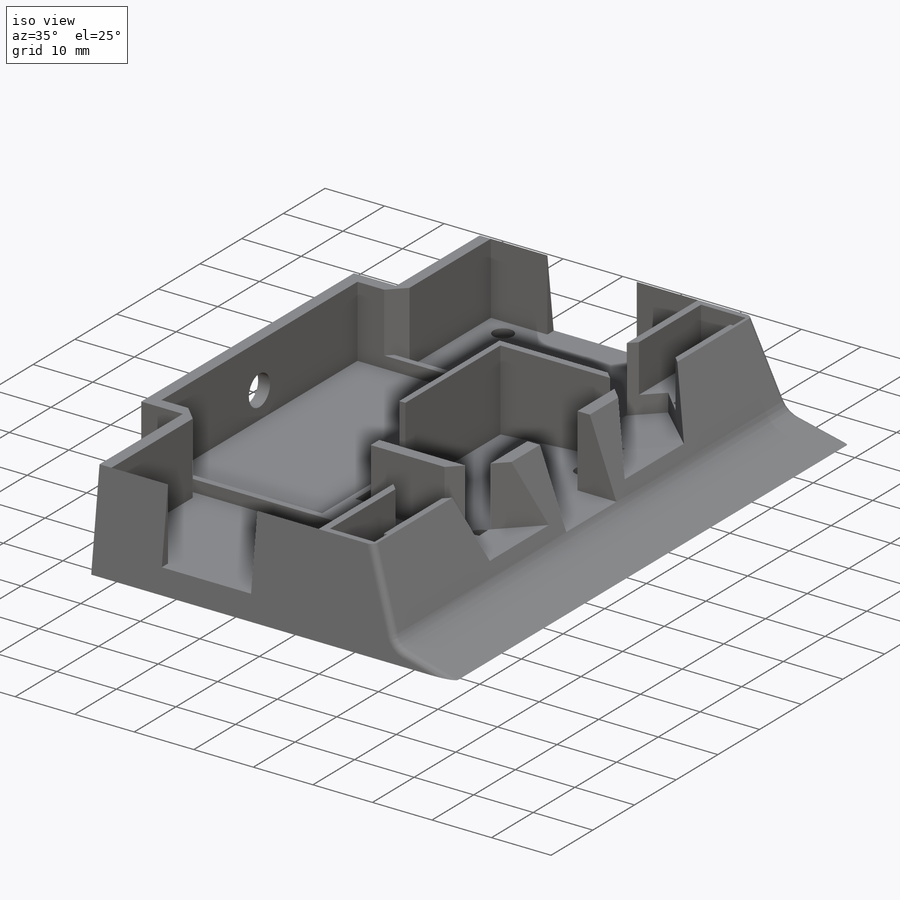
[diagram: iso view]
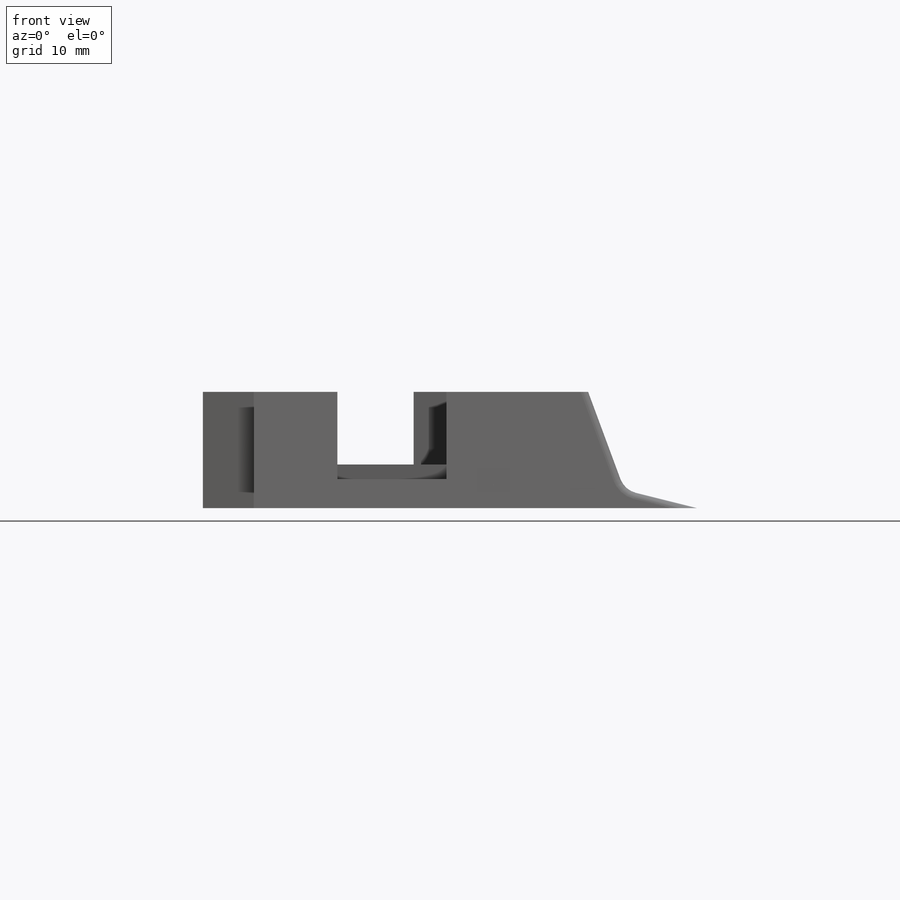
[diagram: front view]
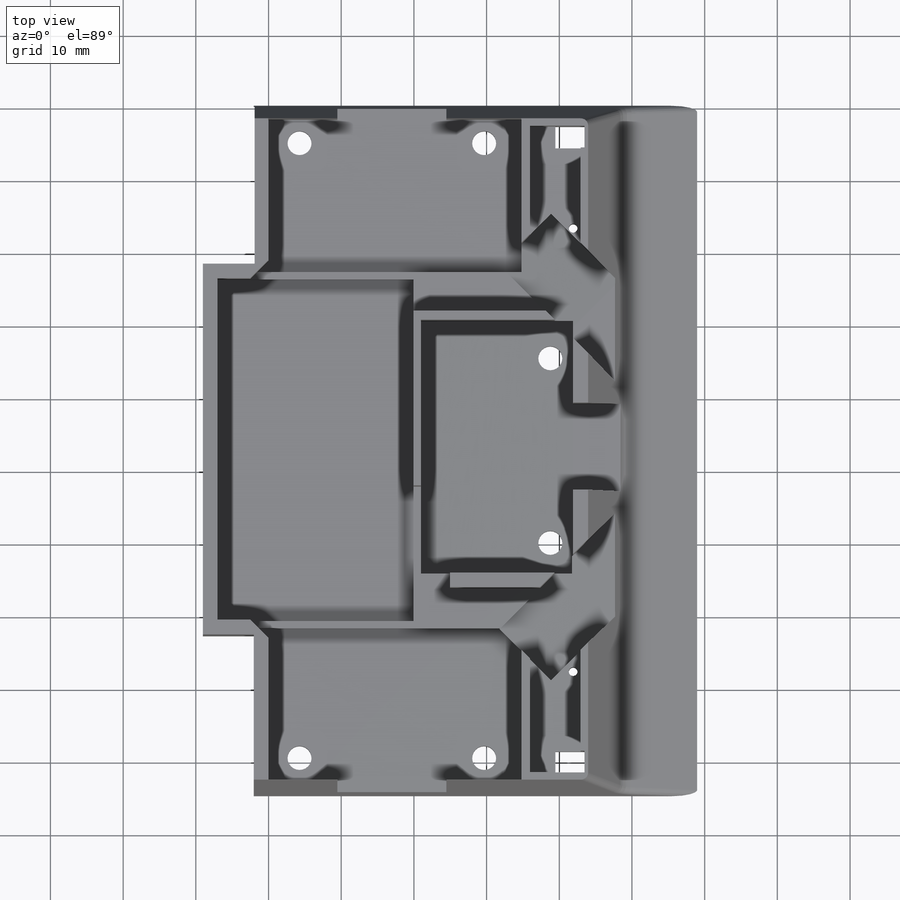
[diagram: top view]
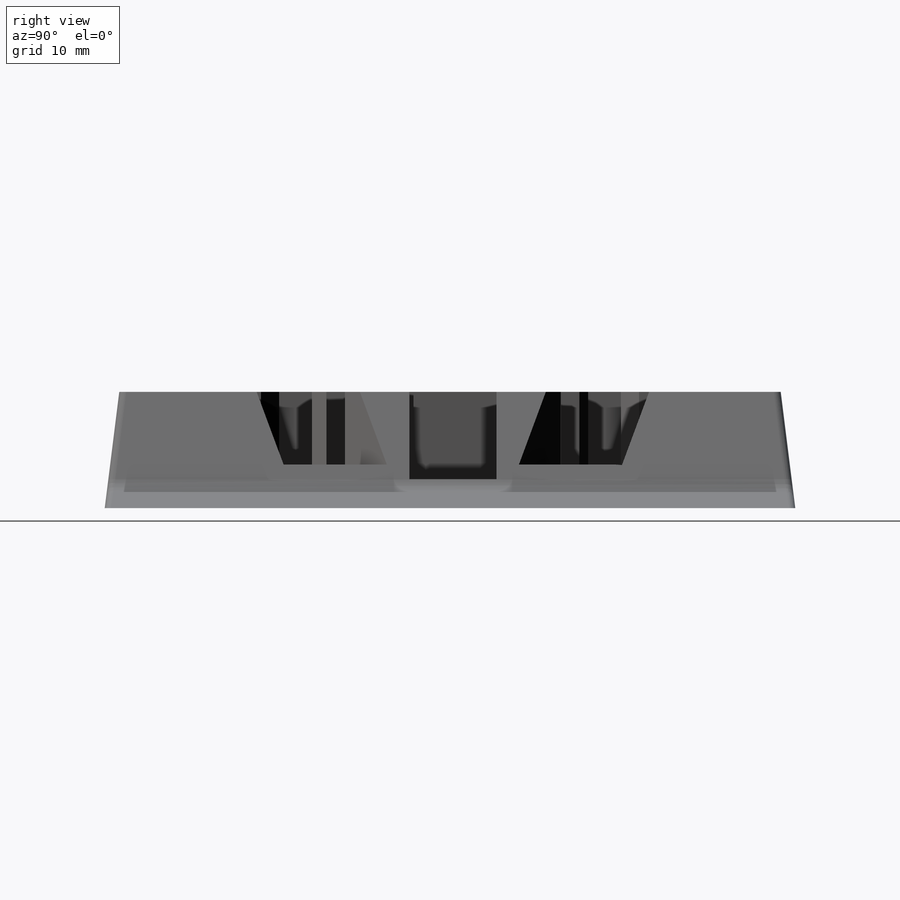
[diagram: right view]
SOLIDWORKS PART (.sldprt)
format: sldprt  version: not decoded by parser v0  size: 2,691,584 bytes
history: native  units: mm
features: sketch x126, cut_extrude x105, extrude x21, fillet x12, chamfer x3, material x1 (+12 scaffold rows collapsed)
feature tree (280):
  scaffold x12  (default folders/planes/origin — collapsed)
  material  "Material <not specified>"
  sketch  "Sketch1"  dims[D1=95.0mm D2=95.0mm]
  extrude  "Boss-Extrude1"  Depth=20mm
  sketch  "Sketch2"  dims[D1=34.0mm]
  cut_extrude  "Cut-Extrude1"  Depth=22mm
  sketch  "Sketch3"  dims[D1=34.0mm]
  cut_extrude  "Cut-Extrude2"  Depth=22mm
  sketch  "Sketch4"  dims[D1=10.75mm D2=17.0mm]
  cut_extrude  "Cut-Extrude3"  Depth=100mm
  sketch  "Sketch5"  dims[D1=5.0mm]
  cut_extrude  "Cut-Extrude4"  Depth=100mm
  fillet  "Fillet3"  Radius=2mm
  sketch  "Sketch7"  dims[D1=15.0mm D2=8.0mm D3=3.0mm D4=40.0mm D5=40.0mm]
  cut_extrude  "Cut-Extrude7"  Depth=50mm
  sketch  "Sketch8"  dims[D1=15.0mm D2=10.0mm D3=3.0mm]
  cut_extrude  "Cut-Extrude8"  Depth=100mm
  fillet  "Fillet4"  Radius=2mm
  fillet  "Fillet5"  Radius=2mm
  sketch  "Sketch10"  dims[D1=9.5mm D2=34.0mm D3=21.0mm D4=9.5mm D5=2.0mm]
  cut_extrude  "Cut-Extrude9"  Depth=12mm
  sketch  "Sketch11"  dims[D1=21.0mm D2=34.0mm D3=2.0mm D4=2.0mm D5=21.0mm D6=2.0mm]
  cut_extrude  "Cut-Extrude10"  Depth=12mm
  sketch  "Sketch12"  dims[D1=8.0mm D2=15.0mm D3=3.0mm D4=9.5mm D5=9.5mm]
  cut_extrude  "Cut-Extrude11"  Depth=20mm
  sketch  "Sketch13"  dims[D1=15.0mm D2=8.0mm D3=3.0mm D4=9.5mm]
  cut_extrude  "Cut-Extrude12"  Depth=20mm
  sketch  "Sketch14"
  cut_extrude  "Cut-Extrude13"  Depth=10mm
  sketch  "Sketch15"
  extrude  "Boss-Extrude2"  Depth=3mm
  sketch  "Sketch16"  dims[D1=2.0mm D2=1.0mm D3=1.0mm D4=1.0mm]
  cut_extrude  "Cut-Extrude14"  Depth=12mm
  sketch  "Sketch17"
  extrude  "Boss-Extrude3"  Depth=12mm
  sketch  "Sketch18"  dims[D1=12.0mm]
  cut_extrude  "Cut-Extrude15"  Depth=10mm
  sketch  "Sketch19"  dims[D1=12.0mm]
  cut_extrude  "Cut-Extrude16"  Depth=10mm
  sketch  "Sketch20"  dims[D1=12.0mm]
  cut_extrude  "Cut-Extrude17"  Depth=10mm
  sketch  "Sketch21"  dims[D1=10.0mm D2=10.0mm D3=20.0mm D4=12.0mm D5=2.0mm D6=20.0mm D7=2.0mm]
  cut_extrude  "Cut-Extrude18"  Depth=4mm
  sketch  "Sketch22"  dims[c1.D1=5.0mm c1.D2=2.5mm c1.D3=1.0mm c1.D4=3.0mm c1.D5=3.0mm c1.D6=3.0mm c2.D5=3.0mm c2.D6=1.0mm]
  cut_extrude  "Cut-Extrude23"  Depth=8mm
  sketch  "Sketch23"  dims[D1=1.0mm D2=2.0mm D3=2.0mm D4=2.0mm]
  cut_extrude  "Cut-Extrude24"  Depth=8mm
  sketch  "Sketch24"  dims[D1=2.0mm D2=1.0mm D3=2.0mm D4=2.0mm]
  cut_extrude  "Cut-Extrude25"  Depth=8mm
  sketch  "Sketch25"
  cut_extrude  "Cut-Extrude26"  Depth=5mm
  sketch  "Sketch27"
  cut_extrude  "Cut-Extrude27"  Depth=5mm
  chamfer  "Chamfer1"  Distance=10mm Angle=45deg
  sketch  "Sketch28"
  extrude  "Boss-Extrude4"  Depth=10mm
  sketch  "Sketch29"  dims[D1=1.0mm D2=1.0mm D3=1.0mm D4=1.0mm]
  cut_extrude  "Cut-Extrude28"  Depth=10mm
  sketch  "Sketch30"  dims[D1=15.0mm D2=8.0mm D3=18.0mm D4=18.0mm]
  cut_extrude  "Cut-Extrude30"  Depth=15mm
  fillet  "Fillet7"  Radius=2mm
  sketch  "Sketch31"  dims[D1=2.0mm]
  cut_extrude  "Cut-Extrude31"  Depth=100mm
  sketch  "Sketch32"
  extrude  "Boss-Extrude5"  Depth=8mm
  sketch  "Sketch33"  dims[D1=2.0mm]
  cut_extrude  "Cut-Extrude32"  Depth=100mm
  sketch  "Sketch34"
  extrude  "Boss-Extrude6"  Depth=8mm
  sketch  "Sketch35"  dims[D1=5.0mm D2=2.0mm D3=5.0mm D4=5.0mm D5=3.0mm]
  cut_extrude  "Cut-Extrude33"  Depth=8mm
  sketch  "Sketch36"  dims[D1=23.5mm D2=23.5mm]
  cut_extrude  "Cut-Extrude34"  Depth=10mm
  sketch  "Sketch37"
  cut_extrude  "Cut-Extrude35"  Depth=3mm
  sketch  "Sketch39"  dims[c1.D1=~1.253505mm c1.D4=~0.799484mm c2.D1=5.0mm c2.D2=5.0mm c2.D3=5.0mm c2.D4=5.0mm]
  cut_extrude  "Cut-Extrude36"  Depth=10mm
  sketch  "Sketch40"  dims[c1.D1=~1.825681mm c1.D2=3.3mm c1.D6=~1.353594mm c2.D1=3.2mm c2.D3=25.4mm c2.D4=4.3mm c2.D5=4.3mm c2.D6=3.2mm c2.D7=3.2mm]
  cut_extrude  "Cut-Extrude37"  Depth=10mm
  sketch  "Sketch41"  dims[c1.D1=~1.658383mm c1.D3=~1.27907mm c2.D1=4.3mm c2.D2=3.2mm c2.D3=4.3mm c2.D4=25.4mm]
  cut_extrude  "Cut-Extrude38"  Depth=10mm
  sketch  "Sketch42"
  cut_extrude  "Cut-Extrude39"  Depth=0.5mm
  sketch  "Sketch43"
  cut_extrude  "Cut-Extrude40"  Depth=0.5mm
  sketch  "Sketch44"
  cut_extrude  "Cut-Extrude41"  Depth=0.5mm
  fillet  "Fillet9"  Radius=2mm
  sketch  "Sketch46"  dims[D5=3.0mm D6=3.0mm D1=7.75mm D2=7.75mm D3=7.5mm D4=7.5mm]
  cut_extrude  "Cut-Extrude43"  Depth=10mm
  sketch  "Sketch47"  dims[c1.D4=3.0mm c1.D5=3.0mm c1.D1=7.07mm c1.D2=15.0mm c1.D3=15.0mm c2.D4=7.07mm]
  cut_extrude  "Cut-Extrude44"  Depth=10mm
  sketch  "Sketch48"
  cut_extrude  "Cut-Extrude45"  Depth=100mm
  sketch  "Sketch50"
  extrude  "Boss-Extrude7"  Depth=50mm
  fillet  "Fillet10"  Radius=2mm
  sketch  "Sketch51"  dims[D1=2.0mm D2=10.0mm D3=~7.806248mm]
  cut_extrude  "Cut-Extrude48"  Depth=60mm
  sketch  "Sketch53"
  extrude  "Boss-Extrude8"  Depth=10mm
  sketch  "Sketch54"
  cut_extrude  "Cut-Extrude49"  Depth=60mm
  sketch  "Sketch55"
  extrude  "Boss-Extrude9"  Depth=1mm
  sketch  "Sketch56"  dims[D1=6.5mm D2=~6.186115mm D3=6.5mm]
  cut_extrude  "Cut-Extrude50"  Depth=10mm
  sketch  "Sketch57"
  extrude  "Boss-Extrude10"  Depth=50mm
  sketch  "Sketch58"
  cut_extrude  "Cut-Extrude51"  Depth=50mm
  sketch  "Sketch61"  dims[D1=15.0mm D2=34.0mm]
  extrude  "Boss-Extrude11"  Depth=22mm
  sketch  "Sketch62"  dims[D1=0.0mm]
  extrude  "Boss-Extrude12"  Depth=95mm
  sketch  "Sketch63"
  cut_extrude  "Cut-Extrude53"  Depth=22mm
  sketch  "Sketch64"
  cut_extrude  "Cut-Extrude54"  Depth=22mm
  sketch  "Sketch65"
  cut_extrude  "Cut-Extrude55"  Depth=22mm
  sketch  "Sketch66"  dims[D1=17.0mm D2=10.0mm]
  cut_extrude  "Cut-Extrude56"  Depth=90mm
  sketch  "Sketch67"
  cut_extrude  "Cut-Extrude57"  Depth=90mm
  sketch  "Sketch68"  dims[D1=2.0mm]
  cut_extrude  "Cut-Extrude58"  Depth=90mm
  sketch  "Sketch69"
  cut_extrude  "Cut-Extrude59"  Depth=90mm
  sketch  "Sketch70"  dims[D1=25.5mm D2=25.5mm D3=7.5mm]
  cut_extrude  "Cut-Extrude60"  Depth=5mm
  sketch  "Sketch73"  dims[D1=15.0mm]
  cut_extrude  "Cut-Extrude61"  Depth=51mm
  sketch  "Sketch74"  dims[D1=15.0mm]
  cut_extrude  "Cut-Extrude62"  Depth=51mm
  sketch  "Sketch75"  dims[D1=0.0mm D2=0.0mm]
  cut_extrude  "Cut-Extrude63"  Depth=12mm
  fillet  "Fillet11"  Radius=2mm
  fillet  "Fillet12"  Radius=2mm
  sketch  "Sketch76"  dims[D1=0.5mm]
  cut_extrude  "Cut-Extrude64"  Depth=12mm
  sketch  "Sketch77"  dims[D1=0.5mm]
  cut_extrude  "Cut-Extrude65"  Depth=12mm
  sketch  "Sketch78"  dims[D1=21.5mm D2=0.3mm]
  cut_extrude  "Cut-Extrude66"  Depth=12mm
  sketch  "Sketch79"  dims[D1=0.3mm]
  cut_extrude  "Cut-Extrude67"  Depth=12mm
  sketch  "Sketch80"  dims[D1=0.3mm]
  cut_extrude  "Cut-Extrude68"  Depth=12mm
  sketch  "Sketch81"  dims[D1=1.5mm]
  cut_extrude  "Cut-Extrude69"  Depth=34.8mm
  sketch  "Sketch82"  dims[D1=7.1mm D2=7.1mm D3=7.1mm D4=7.1mm D5=0.5mm D6=3.0mm D7=7.1mm D8=7.1mm D9=7.1mm D10=7.1mm D11=7.1mm D12=7.1mm D13=7.1mm D14=7.1mm D15=3.0mm]
  cut_extrude  "Cut-Extrude74"  Depth=10mm
  sketch  "Sketch84"
  cut_extrude  "Cut-Extrude75"  Depth=20mm
  sketch  "Sketch85"
  cut_extrude  "Cut-Extrude76"  Depth=20mm
  sketch  "Sketch88"
  sketch  "Sketch90"  dims[D1=~10.040916mm]
  extrude  "Boss-Extrude15"  Depth=60mm
  sketch  "Sketch91"  dims[D1=~10.040916mm]
  extrude  "Boss-Extrude16"  Depth=60mm
  sketch  "Sketch93"
  extrude  "Boss-Extrude17"  Depth=92mm
  sketch  "Sketch94"
  cut_extrude  "Cut-Extrude79"  Depth=60mm
  sketch  "Sketch96"
  cut_extrude  "Cut-Extrude80"  Depth=60mm
  sketch  "Sketch97"  dims[D1=12.0mm D2=8.85mm D3=~8.849607mm]
  cut_extrude  "Cut-Extrude81"  Depth=60mm
  sketch  "Sketch98"  dims[D1=3.0mm D2=10.0mm]
  cut_extrude  "Cut-Extrude82"  Depth=100mm
  fillet  "Fillet17"  Radius=4mm
  sketch  "Sketch100"
  cut_extrude  "Cut-Extrude83"  Depth=5mm
  sketch  "Sketch101"
  cut_extrude  "Cut-Extrude84"  Depth=5mm
  sketch  "Sketch102"
  cut_extrude  "Cut-Extrude85"  Depth=5mm
  sketch  "Sketch103"
  cut_extrude  "Cut-Extrude86"  Depth=5mm
  sketch  "Sketch104"
  cut_extrude  "Cut-Extrude87"  Depth=30mm
  sketch  "Sketch105"  dims[D1=5.0mm]
  cut_extrude  "Cut-Extrude88"  Depth=10mm
  chamfer  "Chamfer3"  Distance=2.5mm Angle=45deg
  chamfer  "Chamfer4"  Distance=2.5mm Angle=45deg
  sketch  "Sketch106"  dims[D1=1.5mm]
  cut_extrude  "Cut-Extrude89"  Depth=10.040916mm
  sketch  "Sketch107"  dims[D1=10.0mm D2=20.0mm]
  cut_extrude  "Cut-Extrude90"  Depth=4mm
  sketch  "Sketch108"
  cut_extrude  "Cut-Extrude91"  Depth=10mm
  sketch  "Sketch109"  dims[D1=20.0mm D2=10.0mm]
  cut_extrude  "Cut-Extrude92"  Depth=4mm
  sketch  "Sketch110"
  cut_extrude  "Cut-Extrude93"  Depth=10mm
  sketch  "Sketch111"
  cut_extrude  "Cut-Extrude94"  Depth=8mm
  sketch  "Sketch112"
  cut_extrude  "Cut-Extrude95"  Depth=8mm
  sketch  "Sketch114"
  extrude  "Boss-Extrude18"  Depth=1mm
  sketch  "Sketch115"  dims[D1=10.0mm D2=20.0mm]
  cut_extrude  "Cut-Extrude96"  Depth=1mm
  sketch  "Sketch117"  dims[D1=10.0mm D2=20.0mm D3=0.0mm D4=2.0mm]
  cut_extrude  "Cut-Extrude97"  Depth=1mm
  sketch  "Sketch118"
  extrude  "Boss-Extrude20"  Depth=1mm
  sketch  "Sketch119"
  extrude  "Boss-Extrude21"  Depth=1mm
  sketch  "Sketch121"
  extrude  "Boss-Extrude22"  Depth=1mm
  sketch  "Sketch124"  dims[D1=1.0mm]
  cut_extrude  "Cut-Extrude109"  Depth=2mm
  sketch  "Sketch129"
  cut_extrude  "Cut-Extrude115"  Depth=2mm
  sketch  "Sketch130"
  cut_extrude  "Cut-Extrude116"  Depth=2mm
  sketch  "Sketch133"  dims[D1=7.1mm D2=7.1mm]
  extrude  "Boss-Extrude23"  Depth=6mm
  sketch  "Sketch134"
  cut_extrude  "Cut-Extrude118"  Depth=2mm
  sketch  "Sketch135"
  cut_extrude  "Cut-Extrude119"  Depth=2mm
  sketch  "Sketch136"  dims[D1=1.0mm]
  cut_extrude  "Cut-Extrude120"  Depth=10mm
  sketch  "Sketch137"  dims[D1=1.0mm]
  cut_extrude  "Cut-Extrude121"  Depth=10mm
  sketch  "Sketch138"  dims[D1=2.5mm D2=10.0mm]
  cut_extrude  "Cut-Extrude122"  Depth=100mm
  fillet  "Fillet18"  Radius=3mm
  sketch  "Sketch139"
  cut_extrude  "Cut-Extrude123"  Depth=100mm
  sketch  "Sketch140"
  cut_extrude  "Cut-Extrude124"  Depth=100mm
  sketch  "Sketch141"
  cut_extrude  "Cut-Extrude128"  Depth=100mm
  fillet  "Fillet19"  Radius=1mm
  fillet  "Fillet20"  Radius=1mm
  sketch  "Sketch143"
  cut_extrude  "Cut-Extrude130"  Depth=12mm
  sketch  "Sketch144"
  cut_extrude  "Cut-Extrude131"  Depth=12mm
  sketch  "Sketch145"
  cut_extrude  "Cut-Extrude132"  Depth=12mm
  sketch  "Sketch146"
  cut_extrude  "Cut-Extrude133"  Depth=12mm
  sketch  "Sketch147"
  cut_extrude  "Cut-Extrude134"  Depth=12mm
  sketch  "Sketch148"
  cut_extrude  "Cut-Extrude135"  Depth=12mm
  sketch  "Sketch149"
  cut_extrude  "Cut-Extrude136"  Depth=12mm
  sketch  "Sketch150"
  cut_extrude  "Cut-Extrude137"  Depth=12mm
  sketch  "Sketch151"
  cut_extrude  "Cut-Extrude138"  Depth=12mm
  sketch  "Sketch152"
  cut_extrude  "Cut-Extrude140"  Depth=12mm
  sketch  "Sketch153"
  cut_extrude  "Cut-Extrude141"  Depth=12mm
  sketch  "Sketch154"  dims[D1=3.0mm D2=4.0mm]
  cut_extrude  "Cut-Extrude142"  Depth=12mm
  sketch  "Sketch156"  dims[D1=3.0mm D2=4.0mm]
  cut_extrude  "Cut-Extrude143"  Depth=12mm
  sketch  "Sketch158"  dims[D1=2.0mm D2=10.0mm D3=10.0mm D4=2.0mm]
  cut_extrude  "Cut-Extrude146"  Depth=2mm
  extrude  "Boss-Extrude14"  Depth=92mm
decode coverage: 206 of 267 modeling features carry decoded parameters
note: ~ marks probable driven/reference dimensions
note: suppression state not decoded; provenance and decode notes live in map.json
